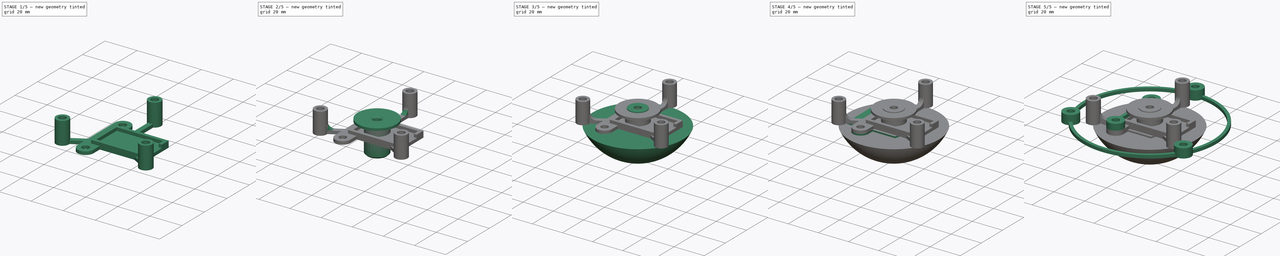
[diagram: build sequence overview — one tinted view per stage of 5, left to right]
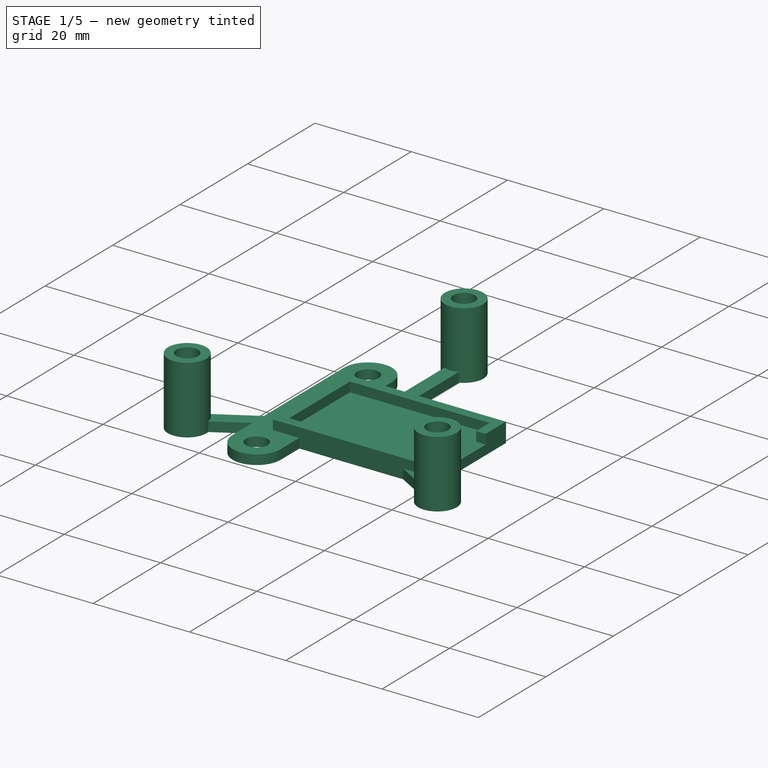
[diagram: stage 1 of 5 — iso view after this stage's code; geometry added in this stage tinted green]
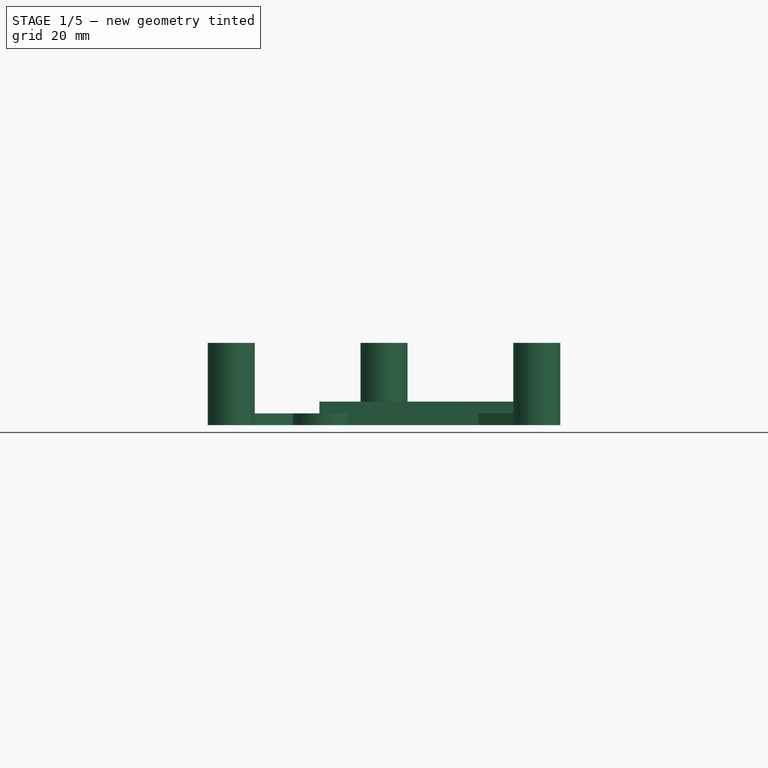
[diagram: stage 1 of 5 — front view after this stage's code; geometry added in this stage tinted green]
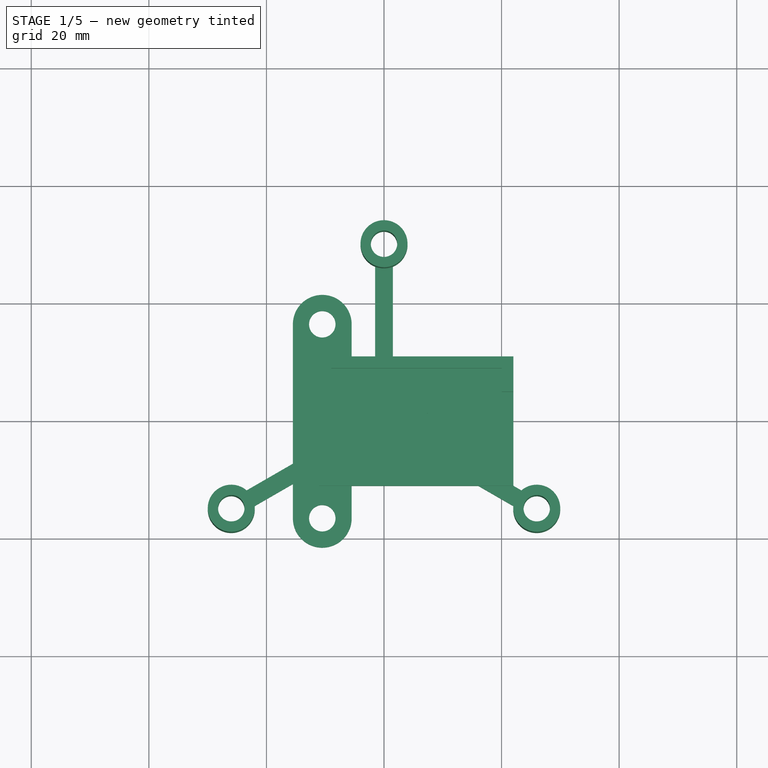
[diagram: stage 1 of 5 — top view after this stage's code; geometry added in this stage tinted green]
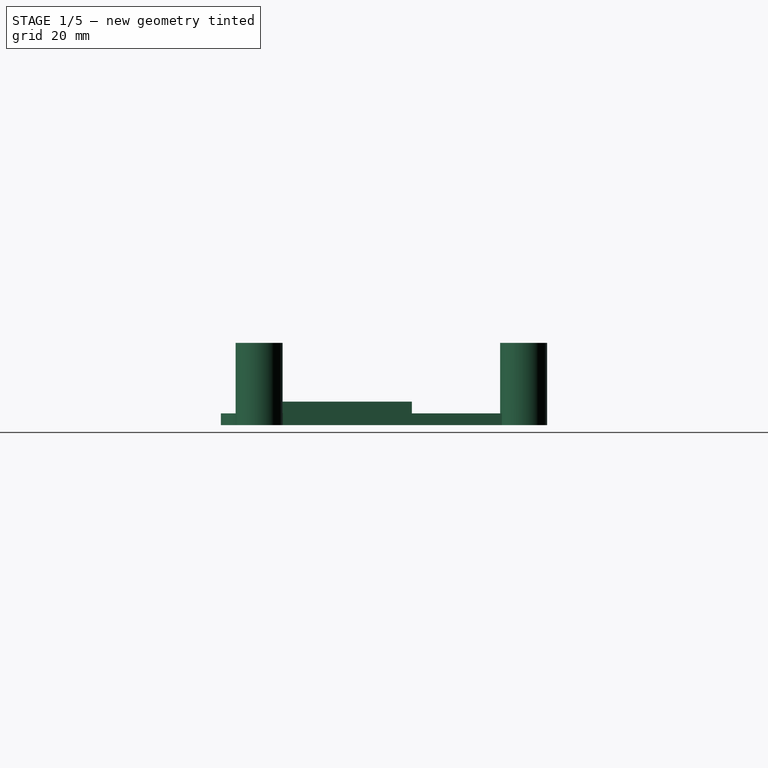
[diagram: stage 1 of 5 — right view after this stage's code; geometry added in this stage tinted green]
FCSTD DOCUMENT  (FreeCAD 0.21R33668 +26 (Git))
Label: presbicitofono
License: All rights reserved
LicenseURL: http://en.wikipedia.org/wiki/All_rights_reserved
objects: Sketcher::SketchObject×17, PartDesign::Pad×11, PartDesign::Body×9, PartDesign::Pocket×4, PartDesign::Chamfer×3, PartDesign::SubShapeBinder×2, PartDesign::Revolution×2, PartDesign::Fillet×1
note: 70 computed .brp shape members not serialized (recipe doc carries the construction recipe); baked Part::Feature solids carry a one-line shape summary decoded from their .brp

FEATURE [PartDesign::Body] Body002  label="fermo"
  Group = -> [Binder,Sketch005,Pad004,Sketch006,Pocket001]
  Origin = -> Origin002
  Tip = -> Pocket001
FEATURE [Sketcher::SketchObject] Sketch007
  FullyConstrained = true
  MapMode = 5
  Support = -> [XY_Plane003]
  sketch-geometry (22):
    g0: LineSegment StartX=0 StartY=30 StartZ=0 EndX=-25.9808 EndY=-15 EndZ=0
    g1: LineSegment StartX=-25.9808 StartY=-15 StartZ=0 EndX=25.9808 EndY=-15 EndZ=0
    g2: LineSegment StartX=25.9808 StartY=-15 StartZ=0 EndX=0 EndY=30 EndZ=0
    g3: Circle CenterX=0 CenterY=0 CenterZ=0 NormalX=0 NormalY=0 NormalZ=1 AngleXU=0 Radius=30
    g4: Circle CenterX=0 CenterY=30 CenterZ=0 NormalX=0 NormalY=0 NormalZ=1 AngleXU=0 Radius=2.25
    g5: Circle CenterX=-25.9808 CenterY=-15 CenterZ=0 NormalX=0 NormalY=0 NormalZ=1 AngleXU=0 Radius=2.25
    g6: Circle CenterX=25.9808 CenterY=-15 CenterZ=0 NormalX=0 NormalY=0 NormalZ=1 AngleXU=0 Radius=2.25
    g7: Circle CenterX=0 CenterY=0 CenterZ=0 NormalX=0 NormalY=0 NormalZ=1 AngleXU=0 Radius=7.5
    g8: ArcOfCircle CenterX=0 CenterY=0 CenterZ=0 NormalX=0 NormalY=0 NormalZ=1 AngleXU=0 Radius=10.5 StartAngle=1.71414 EndAngle=3.52184
    g9: ArcOfCircle CenterX=-25.9808 CenterY=-15 CenterZ=0 NormalX=0 NormalY=0 NormalZ=1 AngleXU=0 Radius=4 StartAngle=0.907996 EndAngle=6.42239
    g10: ArcOfCircle CenterX=25.9808 CenterY=-15 CenterZ=0 NormalX=0 NormalY=0 NormalZ=1 AngleXU=0 Radius=4 StartAngle=3.00239 EndAngle=8.51678
    g11: ArcOfCircle CenterX=0 CenterY=30 CenterZ=0 NormalX=0 NormalY=0 NormalZ=1 AngleXU=0 Radius=4 StartAngle=5.09679 EndAngle=10.6112
    g12: LineSegment StartX=-1.5 StartY=26.2919 StartZ=0 EndX=-1.5 EndY=10.3923 EndZ=0
    g13: LineSegment StartX=1.5 StartY=26.2919 StartZ=0 EndX=1.5 EndY=10.3923 EndZ=0
    g14: LineSegment StartX=-23.5195 StartY=-11.8469 StartZ=0 EndX=-9.75 EndY=-3.89711 EndZ=0
    g15: LineSegment StartX=-22.0195 StartY=-14.445 StartZ=0 EndX=-8.25 EndY=-6.49519 EndZ=0
    g16: LineSegment StartX=22.0195 StartY=-14.445 StartZ=0 EndX=8.25 EndY=-6.49519 EndZ=0
    g17: LineSegment StartX=23.5195 StartY=-11.8469 StartZ=0 EndX=9.75 EndY=-3.89711 EndZ=0
    g18: LineSegment StartX=-25.9808 StartY=-15 StartZ=0 EndX=0 EndY=0 EndZ=0
    g19: LineSegment StartX=0 StartY=0 StartZ=0 EndX=25.9808 EndY=-15 EndZ=0
    g20: ArcOfCircle CenterX=0 CenterY=0 CenterZ=0 NormalX=0 NormalY=0 NormalZ=1 AngleXU=0 Radius=10.5 StartAngle=3.80854 EndAngle=5.61624
    g21: ArcOfCircle CenterX=0 CenterY=0 CenterZ=0 NormalX=0 NormalY=0 NormalZ=1 AngleXU=0 Radius=10.5 StartAngle=5.90293 EndAngle=7.71063
  constraints (61):
    c: Coincident(g0,g1)
    c: Coincident(g1,g2)
    c: Coincident(g2,g0)
    c: Equal(g0,g1)
    c: Equal(g0,g2)
    c: PointOnObject(g0,g3)
    c: PointOnObject(g1,g3)
    c: PointOnObject(g2,g3)
    c: Coincident(g3,g-1)
    c: PointOnObject(g2,g-2)
    c: Diameter(g3) = 60
    c: Coincident(g4,g0)
    c: Coincident(g5,g0)
    c: Coincident(g6,g1)
    c: Equal(g6,g5)
    c: Equal(g5,g4)
    c: Diameter(g4) = 4.5
    c: Coincident(g7,g3)
    c: Coincident(g8,g7)
    c: Coincident(g9,g5)
    c: Coincident(g10,g6)
    c: Coincident(g11,g4)
    c: Equal(g11,g9)
    c: Equal(g9,g10)
    c: Diameter(g11) = 8
    c: Diameter(g7) = 15
    c: Diameter(g8) = 21
    c: Vertical(g12)
    c: Vertical(g13)
    c: PointOnObject(g15,g8)
    c: PointOnObject(g16,g8)
    c: Coincident(g18,g5)
    c: Coincident(g18,g7)
    c: Coincident(g19,g7)
    c: Coincident(g19,g6)
    c: Parallel(g14,g15)
    c: Parallel(g15,g18)
    c: Parallel(g16,g19)
    c: Parallel(g19,g17)
    c: Symmetric(g14,g15,g18)
    c: Distance(g14,g15) = 3
    c: Symmetric(g16,g17,g19)
    c: Distance(g16,g17) = 3
    c: Distance(g12,g13) = 3
    c: Horizontal(g12,g13)
    c: Coincident(g11,g12)
    c: Coincident(g11,g13)
    c: Coincident(g21,g13)
    c: Coincident(g8,g12)
    c: Equal(g8,g20)
    c: Coincident(g8,g14)
    c: Coincident(g8,g20)
    c: PointOnObject(g20,g15)
    c: Equal(g20,g21)
    c: PointOnObject(g21,g17)
    c: Coincident(g20,g21)
    c: PointOnObject(g20,g16)
    c: Coincident(g9,g15)
    c: PointOnObject(g9,g14)
    c: Coincident(g10,g17)
    c: Coincident(g10,g16)
FEATURE [PartDesign::Pad] Pad005
  Direction = (0,0,1)
  Length = 2
  Length2 = 10
  Profile = -> Sketch007
  ReferenceAxis = -> Sketch007 [N_Axis]
  Type = 0
FEATURE [Sketcher::SketchObject] Sketch009
  ExternalGeometry = -> [Pad005]
  FullyConstrained = true
  MapMode = 5
  Placement = pos=(0,0,2) rot=(0,0,1;0rad)
  sketch-geometry (6):
    g0: Circle CenterX=0 CenterY=30 CenterZ=0 NormalX=0 NormalY=0 NormalZ=1 AngleXU=0 Radius=2.25
    g1: Circle CenterX=0 CenterY=30 CenterZ=0 NormalX=0 NormalY=0 NormalZ=1 AngleXU=0 Radius=4
    g2: Circle CenterX=-25.9808 CenterY=-15 CenterZ=0 NormalX=0 NormalY=0 NormalZ=1 AngleXU=0 Radius=2.25
    g3: Circle CenterX=-25.9808 CenterY=-15 CenterZ=0 NormalX=0 NormalY=0 NormalZ=1 AngleXU=0 Radius=4
    g4: Circle CenterX=25.9808 CenterY=-15 CenterZ=0 NormalX=0 NormalY=0 NormalZ=1 AngleXU=0 Radius=2.25
    g5: Circle CenterX=25.9808 CenterY=-15 CenterZ=0 NormalX=0 NormalY=0 NormalZ=1 AngleXU=0 Radius=4
  constraints (12):
    c: Coincident(g1,g0)
    c: Coincident(g3,g2)
    c: Coincident(g5,g4)
    c: Equal(g2,g4)
    c: Equal(g4,g0)
    c: Equal(g0,g-3)
    c: Equal(g5,g3)
    c: Equal(g3,g1)
    c: Equal(g1,g-4)
    c: Coincident(g-4,g0)
    c: Coincident(g4,g-6)
    c: Coincident(g2,g-5)
FEATURE [PartDesign::Pad] Pad007
  BaseFeature = -> Pad005
  Direction = (0,0,1)
  Length = 12
  Length2 = 10
  Profile = -> Sketch009
  ReferenceAxis = -> Sketch009 [N_Axis]
  Refine = true
  Type = 0
FEATURE [PartDesign::Body] Body003  label="spessore sup"
  Group = -> [Sketch007,Pad005,Sketch009,Pad007,Fillet]
  Origin = -> Origin003
  Tip = -> Fillet
FEATURE [Sketcher::SketchObject] Sketch017
  FullyConstrained = true
  MapMode = 5
  Support = -> [XY_Plane008]
  sketch-geometry (10):
    g0: LineSegment StartX=-5.5 StartY=11 StartZ=0 EndX=22 EndY=11 EndZ=0
    g1: LineSegment StartX=22 StartY=11 StartZ=0 EndX=22 EndY=-11 EndZ=0
    g2: LineSegment StartX=22 StartY=-11 StartZ=0 EndX=-5.5 EndY=-11 EndZ=0
    g3: LineSegment StartX=-5.5 StartY=-11 StartZ=0 EndX=-5.5 EndY=-16.5 EndZ=0
    g4: ArcOfCircle CenterX=-10.5 CenterY=-16.5 CenterZ=0 NormalX=0 NormalY=0 NormalZ=1 AngleXU=0 Radius=5 StartAngle=3.14159 EndAngle=6.28319
    g5: LineSegment StartX=-15.5 StartY=-16.5 StartZ=0 EndX=-15.5 EndY=16.5 EndZ=0
    g6: ArcOfCircle CenterX=-10.5 CenterY=16.5 CenterZ=0 NormalX=0 NormalY=0 NormalZ=1 AngleXU=0 Radius=5 StartAngle=0 EndAngle=3.14159
    g7: LineSegment StartX=-5.5 StartY=16.5 StartZ=0 EndX=-5.5 EndY=11 EndZ=0
    g8: Circle CenterX=-10.5 CenterY=16.5 CenterZ=0 NormalX=0 NormalY=0 NormalZ=1 AngleXU=0 Radius=2.25
    g9: Circle CenterX=-10.5 CenterY=-16.5 CenterZ=0 NormalX=0 NormalY=0 NormalZ=1 AngleXU=0 Radius=2.25
  constraints (26):
    c: Horizontal(g0)
    c: Coincident(g0,g1)
    c: Coincident(g1,g2)
    c: Horizontal(g2)
    c: Coincident(g2,g3)
    c: Vertical(g3)
    c: Tangent(g3,g4) = 1.5708
    c: Coincident(g4,g5)
    c: Vertical(g5)
    c: Tangent(g5,g6) = 1.5708
    c: Tangent(g6,g7) = 1.5708
    c: Coincident(g7,g0)
    c: Symmetric(g0,g1,g-1)
    c: Equal(g4,g6)
    c: Equal(g7,g3)
    c: Coincident(g8,g6)
    c: Coincident(g9,g4)
    c: Equal(g9,g8)
    c: Diameter(g8) = 4.5
    c: DistanceX(g0) = 22
    c: Vertical(g7)
    c: DistanceY(g1,g1) = 22
    c: DistanceY(g6) = 16.5
    c: DistanceX(g6) = -10.5
    c: Diameter(g6) = 10
    c: Equal(g2,g0)
FEATURE [PartDesign::Pad] Pad010
  Direction = (0,0,1)
  Length = 2
  Length2 = 10
  Profile = -> Sketch017
  ReferenceAxis = -> Sketch017 [N_Axis]
  Type = 0
FEATURE [Sketcher::SketchObject] Sketch018
  ExternalGeometry = -> [Pad010]
  FullyConstrained = true
  MapMode = 5
  Placement = pos=(0,0,2) rot=(0,0,1;0rad)
  Support = -> [Pad010]
  sketch-geometry (12):
    g0: LineSegment StartX=22 StartY=11 StartZ=0 EndX=22 EndY=5 EndZ=0
    g1: LineSegment StartX=22 StartY=5 StartZ=0 EndX=20 EndY=5 EndZ=0
    g2: LineSegment StartX=20 StartY=5 StartZ=0 EndX=20 EndY=9 EndZ=0
    g3: LineSegment StartX=20 StartY=9 StartZ=0 EndX=-9 EndY=9 EndZ=0
    g4: LineSegment StartX=-9 StartY=9 StartZ=0 EndX=-9 EndY=-9 EndZ=0
    g5: LineSegment StartX=-9 StartY=-9 StartZ=0 EndX=20 EndY=-9 EndZ=0
    g6: LineSegment StartX=20 StartY=-9 StartZ=0 EndX=20 EndY=-5 EndZ=0
    g7: LineSegment StartX=20 StartY=-5 StartZ=0 EndX=22 EndY=-5 EndZ=0
    g8: LineSegment StartX=22 StartY=-5 StartZ=0 EndX=22 EndY=-11 EndZ=0
    g9: LineSegment StartX=22 StartY=-11 StartZ=0 EndX=-11 EndY=-11 EndZ=0
    g10: LineSegment StartX=-11 StartY=-11 StartZ=0 EndX=-11 EndY=11 EndZ=0
    g11: LineSegment StartX=-11 StartY=11 StartZ=0 EndX=22 EndY=11 EndZ=0
  constraints (32):
    c: Coincident(g-3,g0)
    c: PointOnObject(g0,g-3)
    c: Coincident(g0,g1)
    c: Coincident(g1,g2)
    c: Vertical(g2)
    c: Coincident(g2,g3)
    c: Horizontal(g3)
    c: Coincident(g3,g4)
    c: Coincident(g4,g5)
    c: Horizontal(g5)
    c: Coincident(g5,g6)
    c: Coincident(g6,g7)
    c: Coincident(g7,g8)
    c: Coincident(g8,g-3)
    c: Coincident(g8,g9)
    c: Horizontal(g9)
    c: Coincident(g9,g10)
    c: Vertical(g10)
    c: Coincident(g10,g11)
    c: Coincident(g11,g0)
    c: Horizontal(g11)
    c: Vertical(g6)
    c: Horizontal(g7)
    c: Horizontal(g1)
    c: Equal(g1,g7)
    c: Symmetric(g0,g7,g-1)
    c: DistanceX(g1,g1) = 2
    c: DistanceX(g10,g3) = 2
    c: DistanceY(g2,g0) = 2
    c: Symmetric(g4,g3,g-1)
    c: DistanceY(g7,g0) = 10
    c: DistanceX(g3,g3) = 29
FEATURE [PartDesign::Pad] Pad011
  BaseFeature = -> Pad010
  Direction = (0,0,1)
  Length = 2
  Length2 = 10
  Profile = -> Sketch018
  ReferenceAxis = -> Sketch018 [N_Axis]
  Type = 0
FEATURE [PartDesign::Body] Body008  label="supportoTPA4056"
  Group = -> [Sketch017,Pad010,Sketch018,Pad011]
  Origin = -> Origin008
  Tip = -> Pad011
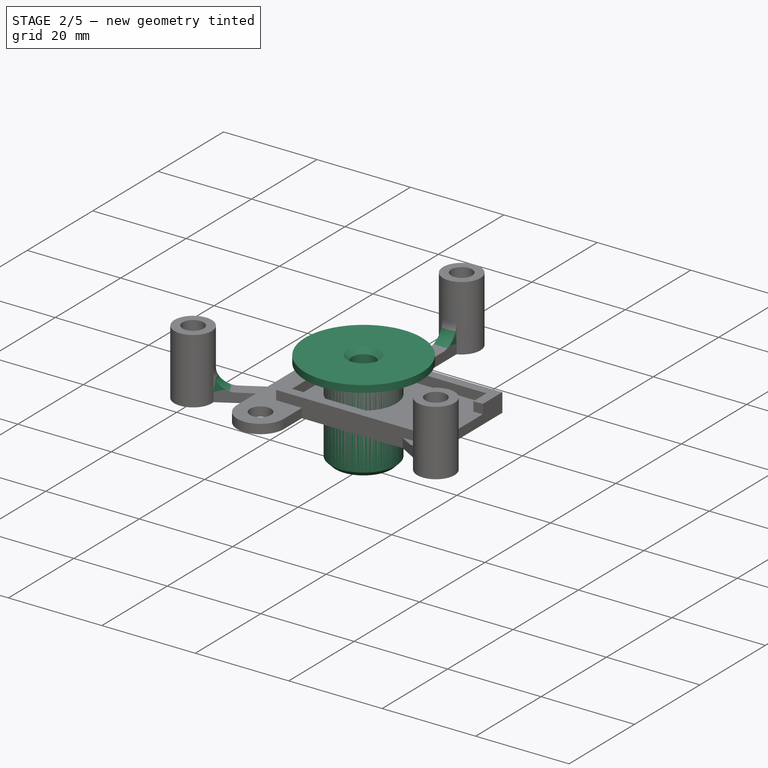
[diagram: stage 2 of 5 — iso view after this stage's code; geometry added in this stage tinted green]
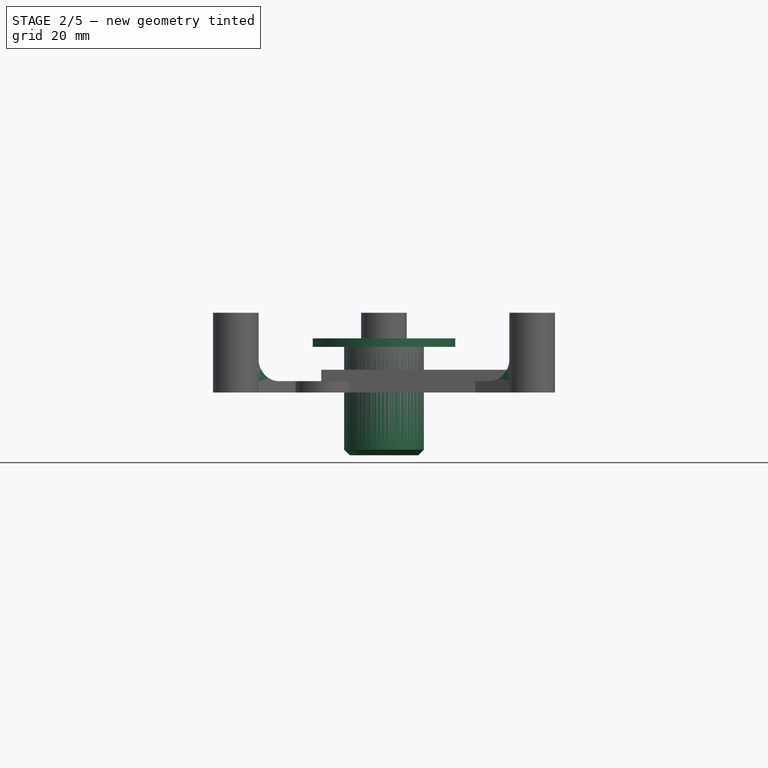
[diagram: stage 2 of 5 — front view after this stage's code; geometry added in this stage tinted green]
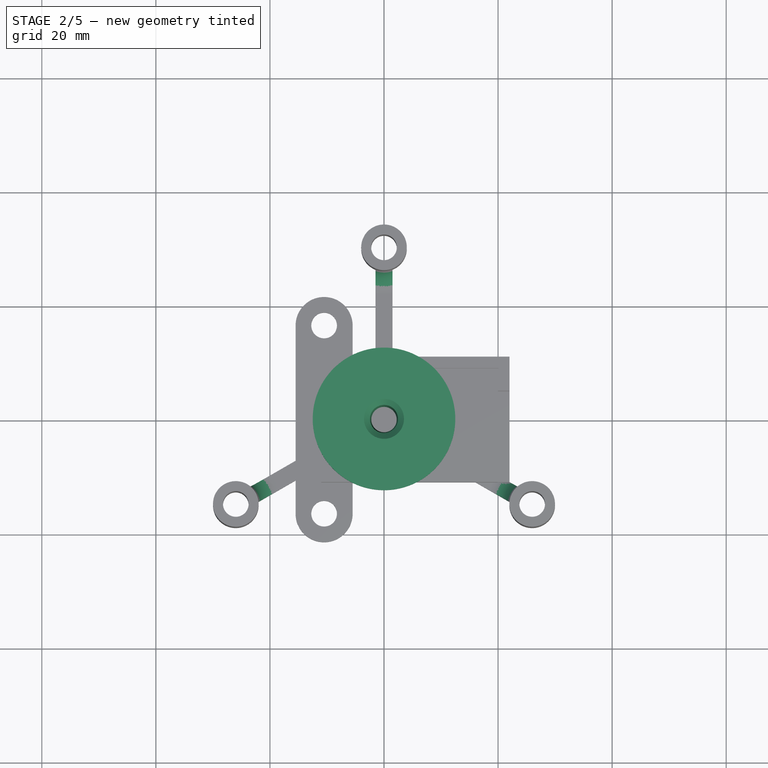
[diagram: stage 2 of 5 — top view after this stage's code; geometry added in this stage tinted green]
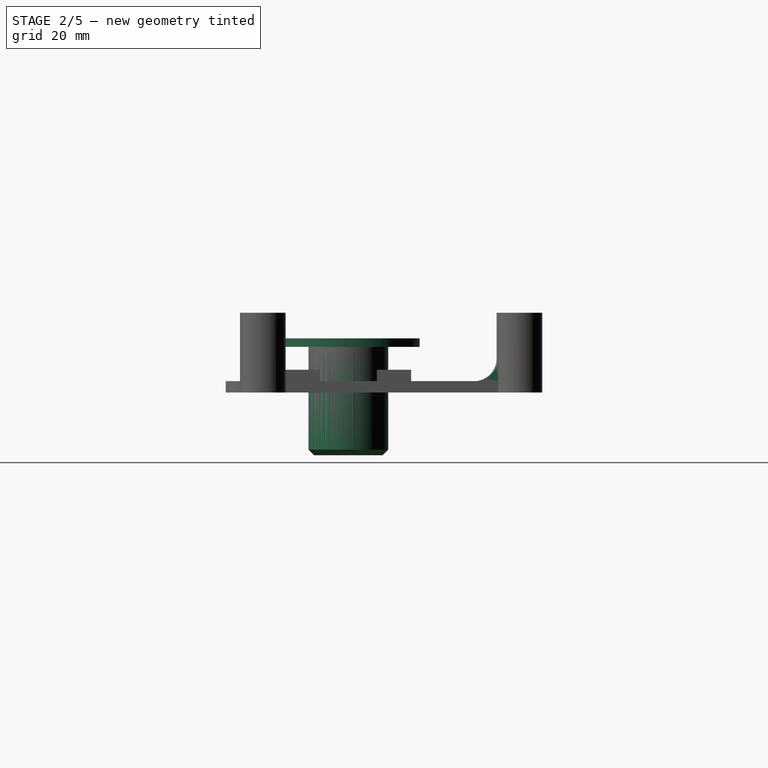
[diagram: stage 2 of 5 — right view after this stage's code; geometry added in this stage tinted green]
FEATURE [Sketcher::SketchObject] Sketch010
  FullyConstrained = true
  MapMode = 5
  Placement = pos=(0,0,0) rot=(1,0,0;1.5708rad)
  Support = -> [XZ_Plane004]
  sketch-geometry (8):
    g0: LineSegment StartX=-2.5 StartY=9.5 StartZ=0 EndX=-12.5 EndY=9.5 EndZ=0
    g1: LineSegment StartX=-12.5 StartY=9.5 StartZ=0 EndX=-12.5 EndY=8 EndZ=0
    g2: LineSegment StartX=-12.5 StartY=8 StartZ=0 EndX=-7 EndY=8 EndZ=0
    g3: LineSegment StartX=-7 StartY=8 StartZ=0 EndX=-7 EndY=-11 EndZ=0
    g4: LineSegment StartX=-7 StartY=-11 StartZ=0 EndX=0 EndY=-11 EndZ=0
    g5: LineSegment StartX=0 StartY=-11 StartZ=0 EndX=0 EndY=-4 EndZ=0
    g6: LineSegment StartX=0 StartY=-4 StartZ=0 EndX=-2 EndY=-4 EndZ=0
    g7: LineSegment StartX=-2 StartY=-4 StartZ=0 EndX=-2.5 EndY=9.5 EndZ=0
  constraints (24):
    c: Horizontal(g0)
    c: Coincident(g0,g1)
    c: Coincident(g1,g2)
    c: Horizontal(g2)
    c: Coincident(g2,g3)
    c: Vertical(g3)
    c: Coincident(g3,g4)
    c: PointOnObject(g4,g-2)
    c: Coincident(g4,g5)
    c: PointOnObject(g5,g-2)
    c: Coincident(g5,g6)
    c: Coincident(g6,g7)
    c: Coincident(g0,g7)
    c: Vertical(g1)
    c: DistanceY(g1,g1) = 1.5
    c: DistanceX(g0,g0) = 10
    c: Horizontal(g6)
    c: Horizontal(g4)
    c: DistanceX(g2) = -7
    c: DistanceX(g0) = -2.5
    c: DistanceY(g1) = 8
    c: DistanceY(g5) = -4
    c: DistanceY(g5,g5) = 7
    c: DistanceX(g6,g6) = 2
FEATURE [PartDesign::Revolution] Revolution
  Angle = 360
  Axis = (0,-2e-16,1)
  Base = (0,0,0)
  Placement = pos=(0,0,0) rot=(1,0,0;1.5708rad)
  Profile = -> Sketch010
  ReferenceAxis = -> Sketch010 [V_Axis]
FEATURE [PartDesign::Chamfer] Chamfer
  Angle = 45
  Base = -> Revolution [Edge1]
  BaseFeature = -> Revolution
  ChamferType = 0
  FlipDirection = false
  Placement = pos=(0,0,0) rot=(1,0,0;1.5708rad)
  Size = 1
  Size2 = 1
  SupportTransform = false
  UseAllEdges = false
FEATURE [PartDesign::Body] Body006  label="piedino"
  Group = -> [Sketch013,Sketch014,Pad009,Pocket002]
  Origin = -> Origin006
  Tip = -> Pocket002
FEATURE [PartDesign::Chamfer] Chamfer001
  Angle = 45
  Base = -> Chamfer [Edge10]
  BaseFeature = -> Chamfer
  ChamferType = 0
  FlipDirection = false
  Placement = pos=(0,0,0) rot=(1,0,0;1.5708rad)
  Size = 1
  Size2 = 1
  SupportTransform = false
  UseAllEdges = false
FEATURE [PartDesign::Body] Body004  label="pulsante"
  Group = -> [Sketch010,Revolution,Chamfer,Chamfer001,Sketch016,Pocket003]
  Origin = -> Origin004
  Tip = -> Pocket003
FEATURE [PartDesign::Fillet] Fillet
  Base = -> Pad007 [Edge29,Edge33,Edge36]
  BaseFeature = -> Pad007
  Radius = 4
  SupportTransform = false
  UseAllEdges = false
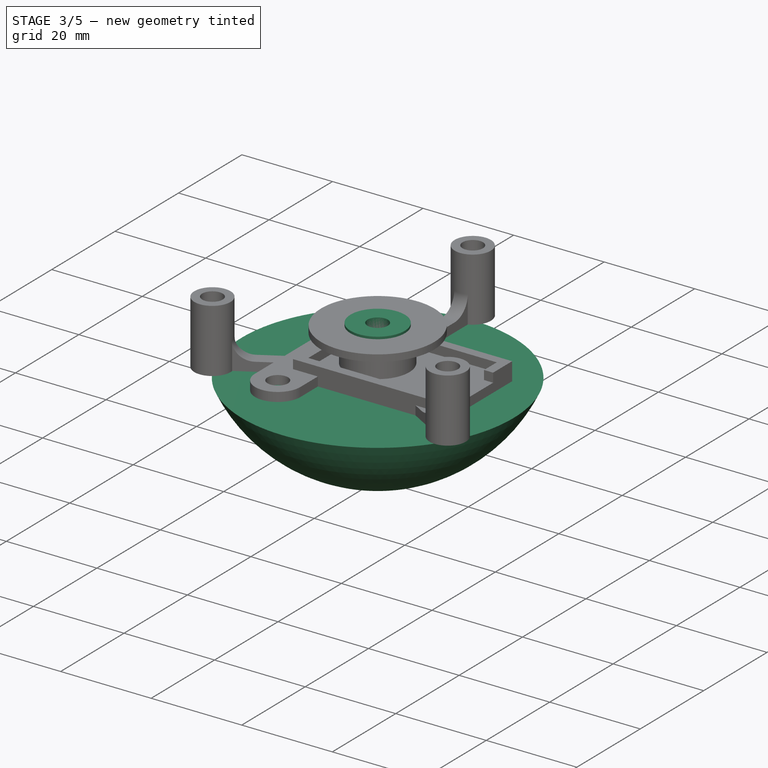
[diagram: stage 3 of 5 — iso view after this stage's code; geometry added in this stage tinted green]
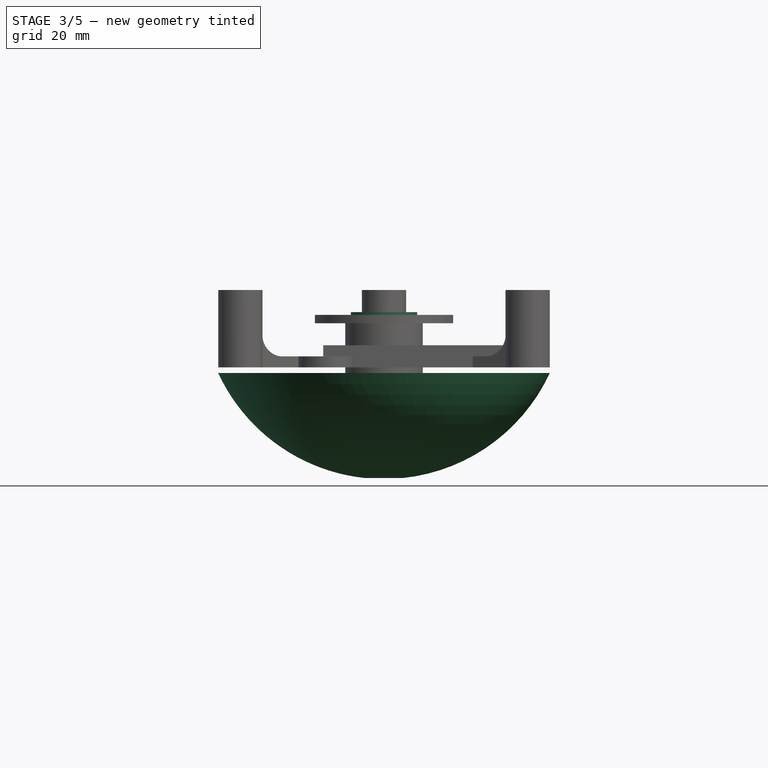
[diagram: stage 3 of 5 — front view after this stage's code; geometry added in this stage tinted green]
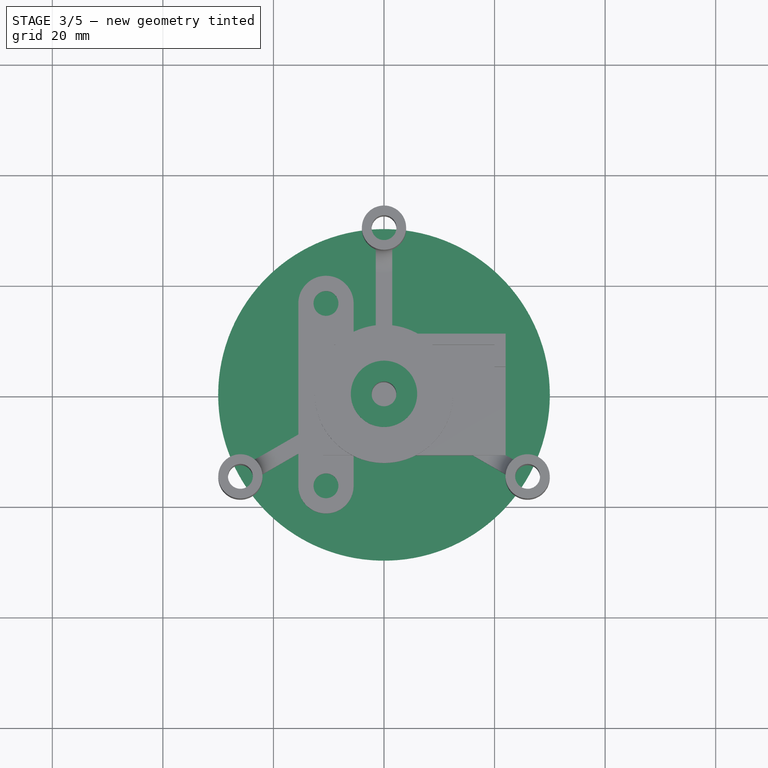
[diagram: stage 3 of 5 — top view after this stage's code; geometry added in this stage tinted green]
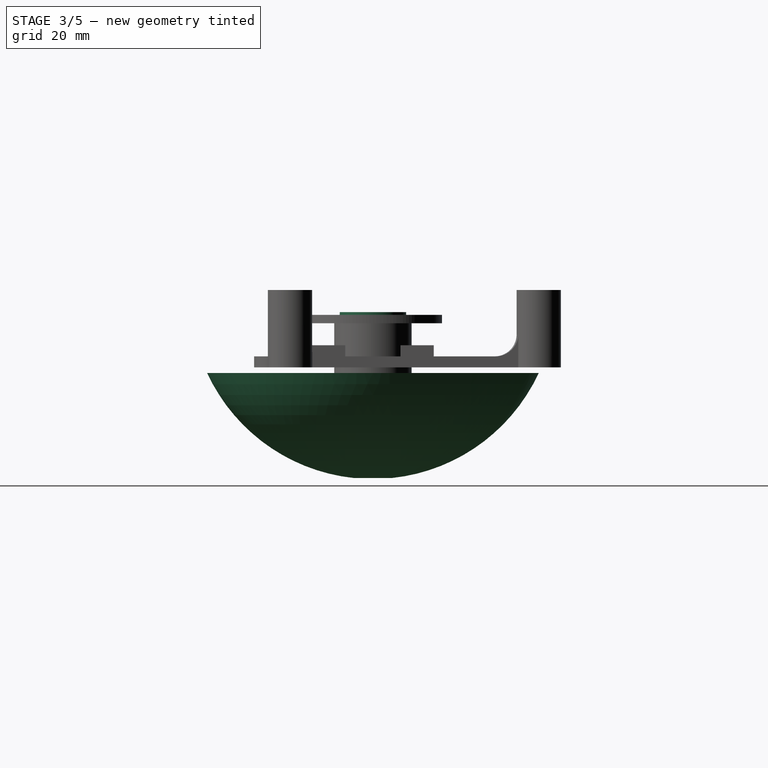
[diagram: stage 3 of 5 — right view after this stage's code; geometry added in this stage tinted green]
FEATURE [PartDesign::Body] Body005  label="spessore portamodulo"
  Group = -> [Binder001,Sketch011,Pad008]
  Origin = -> Origin005
  Tip = -> Pad008
FEATURE [Sketcher::SketchObject] Sketch014
  FullyConstrained = true
  MapMode = 5
  Support = -> [XY_Plane006]
  sketch-geometry (2):
    g0: Circle CenterX=0 CenterY=0 CenterZ=0 NormalX=0 NormalY=0 NormalZ=1 AngleXU=0 Radius=6
    g1: Circle CenterX=0 CenterY=0 CenterZ=0 NormalX=0 NormalY=0 NormalZ=1 AngleXU=0 Radius=2.25
  constraints (4):
    c: Coincident(g0,g-1)
    c: Coincident(g1,g0)
    c: Diameter(g1) = 4.5
    c: Diameter(g0) = 12
FEATURE [PartDesign::Pad] Pad009
  Direction = (0,0,1)
  Length = 10
  Length2 = 10
  Profile = -> Sketch014
  ReferenceAxis = -> Sketch014 [N_Axis]
  Type = 0
FEATURE [Sketcher::SketchObject] Sketch013
  FullyConstrained = true
  MapMode = 5
  Placement = pos=(0,0,0) rot=(1,0,0;3.14159rad)
  Support = -> [Pad009]
  sketch-geometry (7):
    g0: LineSegment StartX=3.4641 StartY=-2 StartZ=0 EndX=3.4641 EndY=2 EndZ=0
    g1: LineSegment StartX=3.4641 StartY=2 StartZ=0 EndX=2.2e-15 EndY=4 EndZ=0
    g2: LineSegment StartX=2.2e-15 StartY=4 StartZ=0 EndX=-3.4641 EndY=2 EndZ=0
    g3: LineSegment StartX=-3.4641 StartY=2 StartZ=0 EndX=-3.4641 EndY=-2 EndZ=0
    g4: LineSegment StartX=-3.4641 StartY=-2 StartZ=0 EndX=1.3e-15 EndY=-4 EndZ=0
    g5: LineSegment StartX=1.3e-15 StartY=-4 StartZ=0 EndX=3.4641 EndY=-2 EndZ=0
    g6: Circle CenterX=0 CenterY=0 CenterZ=0 NormalX=0 NormalY=0 NormalZ=1 AngleXU=0 Radius=4
  constraints (16):
    c: Coincident(g0,g1)
    c: Coincident(g1,g2)
    c: Coincident(g2,g3)
    c: Coincident(g3,g4)
    c: Coincident(g4,g5)
    c: Coincident(g5,g0)
    c: Equal(g0, g1-g5) x5
    c: PointOnObject(g0,g6)
    c: PointOnObject(g1,g6)
    c: PointOnObject(g2,g6)
    c: PointOnObject(g3,g6)
    c: PointOnObject(g4,g6)
    c: PointOnObject(g5,g6)
    c: Coincident(g6,g-1)
    c: Vertical(g0)
    c: Diameter(g6) = 8
FEATURE [PartDesign::Pocket] Pocket002
  BaseFeature = -> Pad009
  Direction = (0,0,1)
  Length = 7
  Length2 = 5
  Profile = -> Sketch013
  ReferenceAxis = -> Sketch013 [N_Axis]
  Type = 0
FEATURE [Sketcher::SketchObject] Sketch015
  FullyConstrained = true
  MapMode = 5
  Placement = pos=(0,0,0) rot=(1,0,0;1.5708rad)
  Support = -> [XZ_Plane007]
  sketch-geometry (7):
    g0: LineSegment StartX=-7.5 StartY=-1 StartZ=0 EndX=-7.5 EndY=-11 EndZ=0
    g1: LineSegment StartX=-7.5 StartY=-11 StartZ=0 EndX=-1.5 EndY=-11 EndZ=0
    g2: ArcOfCircle CenterX=0 CenterY=12.8618 CenterZ=0 NormalX=0 NormalY=0 NormalZ=1 AngleXU=0 Radius=33.0477 StartAngle=3.57443 EndAngle=4.60628
    g3: LineSegment StartX=-30 StartY=-1 StartZ=0 EndX=-7.5 EndY=-1 EndZ=0
    g4: LineSegment StartX=-1.5 StartY=-14 StartZ=0 EndX=-3.5 EndY=-14 EndZ=0
    g5: LineSegment StartX=-3.5 StartY=-14 StartZ=0 EndX=-3.5 EndY=-20 EndZ=0
    g6: LineSegment StartX=-1.5 StartY=-14 StartZ=0 EndX=-1.5 EndY=-11 EndZ=0
  constraints (22):
    c: Vertical(g0)
    c: Coincident(g0,g1)
    c: Horizontal(g1)
    c: Coincident(g2,g3)
    c: Horizontal(g3)
    c: DistanceX(g2) = -30
    c: DistanceY(g0,g0) = 10
    c: Coincident(g0,g3)
    c: Horizontal(g4)
    c: Coincident(g4,g5)
    c: Vertical(g5)
    c: Vertical(g6)
    c: Coincident(g4,g6)
    c: Coincident(g2,g5)
    c: DistanceX(g4) = -1.5
    c: DistanceX(g2) = -3.5
    c: DistanceY(g6,g6) = 3
    c: PointOnObject(g2,g-2)
    c: Coincident(g1,g6)
    c: DistanceY(g0) = -1
    c: DistanceX(g0) = -7.5
    c: DistanceY(g5,g5) = 6
FEATURE [PartDesign::Revolution] Revolution001
  Angle = 360
  Axis = (0,-2e-16,1)
  Base = (0,0,0)
  Placement = pos=(0,0,0) rot=(1,0,0;1.5708rad)
  Profile = -> Sketch015
  ReferenceAxis = -> Sketch015 [V_Axis]
FEATURE [PartDesign::Chamfer] Chamfer002
  Angle = 45
  Base = -> Revolution001 [Edge2]
  BaseFeature = -> Revolution001
  ChamferType = 0
  FlipDirection = false
  Placement = pos=(0,0,0) rot=(1,0,0;1.5708rad)
  Size = 1
  Size2 = 1
  SupportTransform = false
  UseAllEdges = false
FEATURE [PartDesign::Body] Body007  label="cappello"
  Group = -> [Sketch015,Revolution001,Chamfer002]
  Origin = -> Origin007
  Tip = -> Chamfer002
FEATURE [Sketcher::SketchObject] Sketch016
  FullyConstrained = true
  MapMode = 5
  Placement = pos=(0,-2.4e-15,-11) rot=(1,0,0;3.14159rad)
  Support = -> [Chamfer001]
  sketch-geometry (1):
    g0: Circle CenterX=0 CenterY=0 CenterZ=0 NormalX=0 NormalY=0 NormalZ=1 AngleXU=0 Radius=1.25
  constraints (2):
    c: Coincident(g0,g-1)
    c: Diameter(g0) = 2.5
FEATURE [PartDesign::Pocket] Pocket003
  BaseFeature = -> Chamfer001
  Direction = (0,-2e-16,1)
  Length = 3.5
  Length2 = 5
  Placement = pos=(0,0,0) rot=(1,0,0;1.5708rad)
  Profile = -> Sketch016
  ReferenceAxis = -> Sketch016 [N_Axis]
  Type = 0
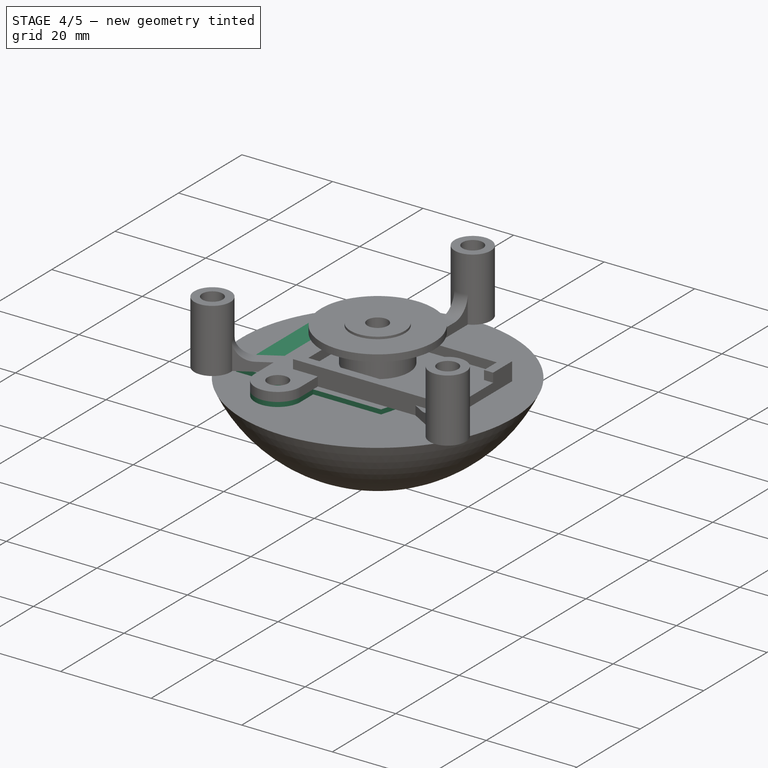
[diagram: stage 4 of 5 — iso view after this stage's code; geometry added in this stage tinted green]
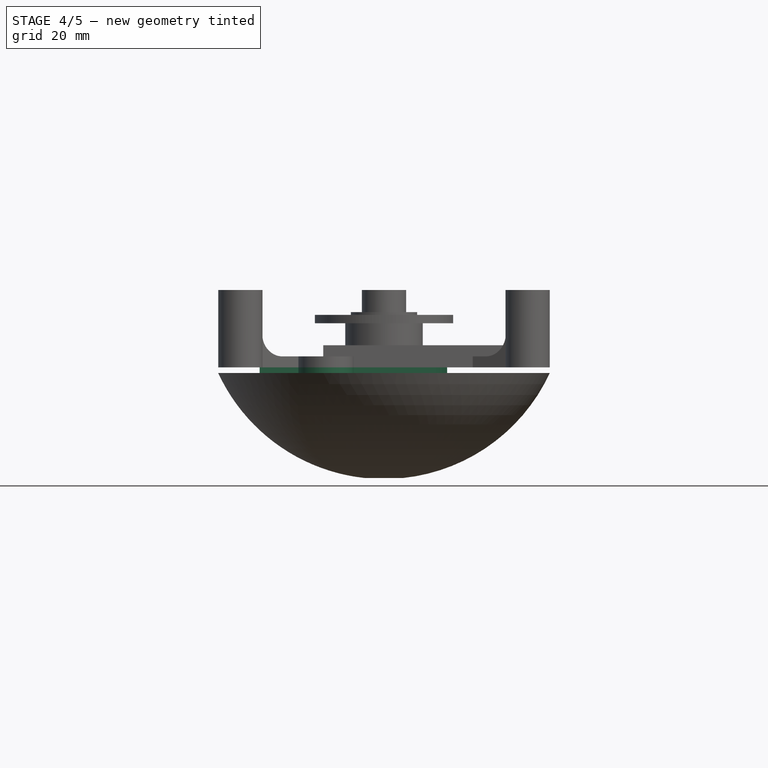
[diagram: stage 4 of 5 — front view after this stage's code; geometry added in this stage tinted green]
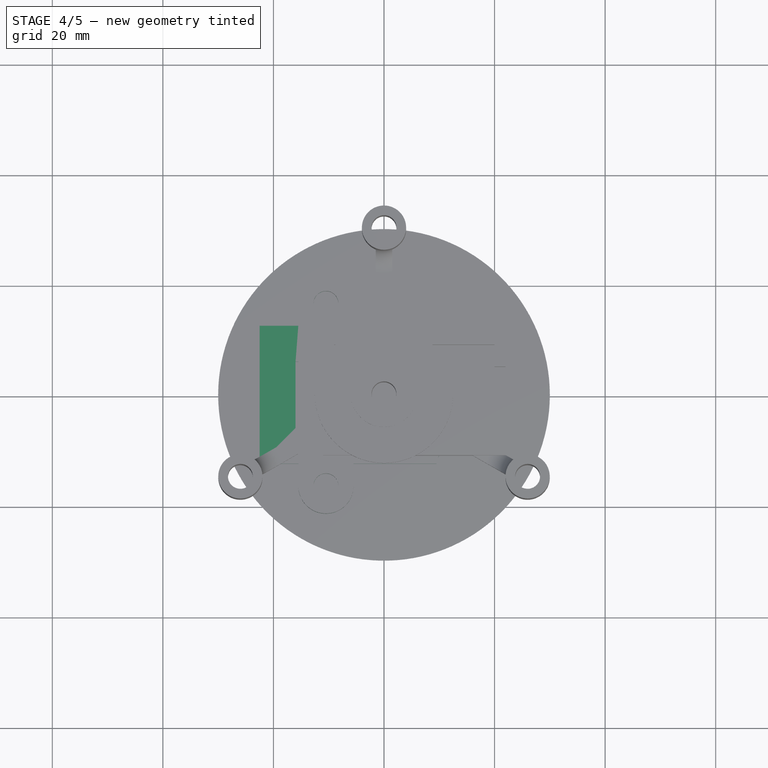
[diagram: stage 4 of 5 — top view after this stage's code; geometry added in this stage tinted green]
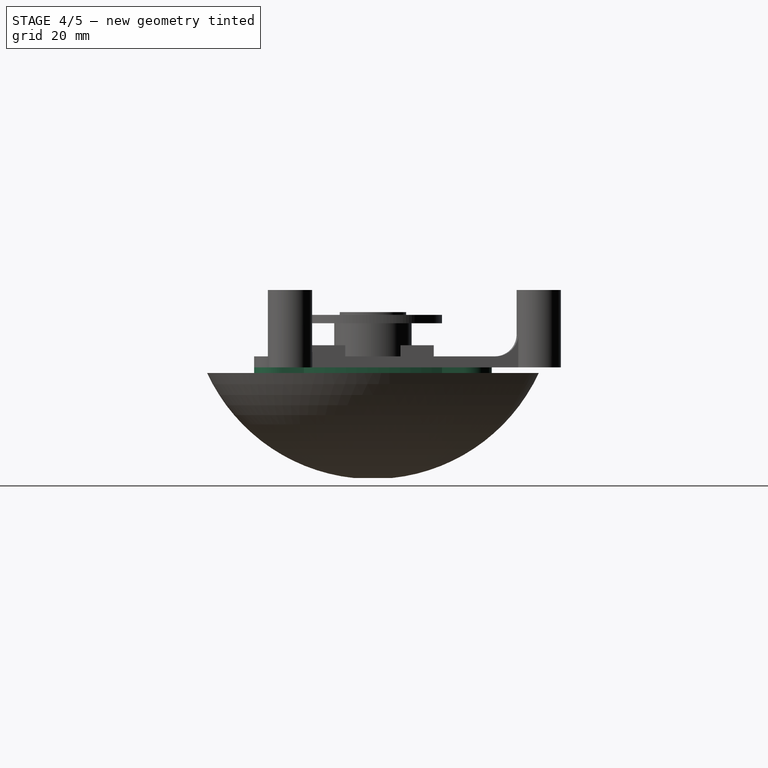
[diagram: stage 4 of 5 — right view after this stage's code; geometry added in this stage tinted green]
FEATURE [PartDesign::Body] Body  label="spessore inf"
  Group = -> [Sketch,Pad,Sketch001,Pad001]
  Origin = -> Origin
  Tip = -> Pad001
FEATURE [Sketcher::SketchObject] Sketch002
  FullyConstrained = true
  MapMode = 5
  Support = -> [XY_Plane001]
  sketch-geometry (14):
    g0: LineSegment StartX=22.5 StartY=12.5 StartZ=0 EndX=22.5 EndY=-12.5 EndZ=0
    g1: LineSegment StartX=22.5 StartY=-12.5 StartZ=0 EndX=-5.5 EndY=-12.5 EndZ=0
    g2: ArcOfCircle CenterX=-10.5 CenterY=16.5 CenterZ=0 NormalX=0 NormalY=0 NormalZ=1 AngleXU=0 Radius=5 StartAngle=0 EndAngle=3.14159
    g3: LineSegment StartX=-5.5 StartY=16.5 StartZ=0 EndX=-5.5 EndY=12.5 EndZ=0
    g4: Circle CenterX=-10.5 CenterY=16.5 CenterZ=0 NormalX=0 NormalY=0 NormalZ=1 AngleXU=0 Radius=2.25
    g5: LineSegment StartX=-5.5 StartY=-12.5 StartZ=0 EndX=-5.5 EndY=-16.5 EndZ=0
    g6: ArcOfCircle CenterX=-10.5 CenterY=-16.5 CenterZ=0 NormalX=0 NormalY=0 NormalZ=1 AngleXU=0 Radius=5 StartAngle=3.14159 EndAngle=6.28319
    g7: Circle CenterX=-10.5 CenterY=-16.5 CenterZ=0 NormalX=0 NormalY=0 NormalZ=1 AngleXU=0 Radius=2.25
    g8: LineSegment StartX=-5.5 StartY=12.5 StartZ=0 EndX=22.5 EndY=12.5 EndZ=0
    g9: LineSegment StartX=-15.5 StartY=16.5 StartZ=0 EndX=-15.5 EndY=12.5 EndZ=0
    g10: LineSegment StartX=-15.5 StartY=12.5 StartZ=0 EndX=-22.5 EndY=12.5 EndZ=0
    g11: LineSegment StartX=-22.5 StartY=12.5 StartZ=0 EndX=-22.5 EndY=-12.5 EndZ=0
    g12: LineSegment StartX=-22.5 StartY=-12.5 StartZ=0 EndX=-15.5 EndY=-12.5 EndZ=0
    g13: LineSegment StartX=-15.5 StartY=-12.5 StartZ=0 EndX=-15.5 EndY=-16.5 EndZ=0
  constraints (36):
    c: Coincident(g0,g1)
    c: Horizontal(g1)
    c: DistanceY(g0,g0) = 25
    c: Tangent(g2,g3) = 1.5708
    c: Vertical(g3)
    c: Coincident(g8,g0)
    c: Coincident(g4,g2)
    c: Diameter(g4) = 4.5
    c: Vertical(g5)
    c: Tangent(g5,g6) = 1.5708
    c: Equal(g6,g2)
    c: Coincident(g7,g6)
    c: Equal(g7,g4)
    c: Equal(g5,g3)
    c: Symmetric(g0,g0,g-1)
    c: DistanceY(g3,g3) = 4
    c: Radius(g2) = 5
    c: Coincident(g1,g5)
    c: Horizontal(g8)
    c: Coincident(g3,g8)
    c: Tangent(g2,g9) = -1.5708
    c: Coincident(g9,g10)
    c: Horizontal(g10)
    c: Coincident(g10,g11)
    c: Vertical(g11)
    c: Coincident(g11,g12)
    c: Horizontal(g12)
    c: Coincident(g12,g13)
    c: Vertical(g13)
    c: Vertical(g9)
    c: DistanceX(g11,g0) = 45
    c: Symmetric(g0,g10,g-1)
    c: Vertical(g6,g2)
    c: DistanceX(g11,g6) = 12
    c: Horizontal(g12,g1)
    c: Tangent(g13,g6) = -1.5708
FEATURE [PartDesign::Pad] Pad002
  Direction = (0,0,1)
  Length = 2
  Length2 = 10
  Profile = -> Sketch002
  ReferenceAxis = -> Sketch002 [N_Axis]
  Refine = true
  Type = 0
FEATURE [Sketcher::SketchObject] Sketch003
  ExternalGeometry = -> [Pad002]
  FullyConstrained = true
  MapMode = 5
  Placement = pos=(0,0,2) rot=(0,0,1;0rad)
  Support = -> [Pad002]
  sketch-geometry (18):
    g0: LineSegment StartX=22.5 StartY=-12.5 StartZ=0 EndX=15.5 EndY=-12.5 EndZ=0
    g1: LineSegment StartX=15.5 StartY=-12.5 StartZ=0 EndX=15.5 EndY=-10.5 EndZ=0
    g2: LineSegment StartX=15.5 StartY=-10.5 StartZ=0 EndX=22.5 EndY=-10.5 EndZ=0
    g3: LineSegment StartX=20.5 StartY=10.5 StartZ=0 EndX=15.5 EndY=10.5 EndZ=0
    g4: LineSegment StartX=15.5 StartY=10.5 StartZ=0 EndX=15.5 EndY=12.5 EndZ=0
    g5: LineSegment StartX=15.5 StartY=12.5 StartZ=0 EndX=22.5 EndY=12.5 EndZ=0
    g6: LineSegment StartX=-15.5 StartY=12.5 StartZ=0 EndX=-22.5 EndY=12.5 EndZ=0
    g7: LineSegment StartX=-22.5 StartY=12.5 StartZ=0 EndX=-22.5 EndY=-12.5 EndZ=0
    g8: LineSegment StartX=-22.5 StartY=-12.5 StartZ=0 EndX=-15.5 EndY=-12.5 EndZ=0
    g9: LineSegment StartX=-15.5 StartY=-12.5 StartZ=0 EndX=-15.5 EndY=-10.5 EndZ=0
    g10: LineSegment StartX=-15.5 StartY=-10.5 StartZ=0 EndX=-20.5 EndY=-10.5 EndZ=0
    g11: LineSegment StartX=-20.5 StartY=-10.5 StartZ=0 EndX=-20.5 EndY=10.5 EndZ=0
    g12: LineSegment StartX=-20.5 StartY=10.5 StartZ=0 EndX=-15.5 EndY=10.5 EndZ=0
    g13: LineSegment StartX=-15.5 StartY=10.5 StartZ=0 EndX=-15.5 EndY=12.5 EndZ=0
    g14: LineSegment StartX=22.5 StartY=-12.5 StartZ=0 EndX=22.5 EndY=-10.5 EndZ=0
    g15: LineSegment StartX=20.5 StartY=10.5 StartZ=0 EndX=20.5 EndY=-0.5 EndZ=0
    g16: LineSegment StartX=20.5 StartY=-0.5 StartZ=0 EndX=22.5 EndY=-0.5 EndZ=0
    g17: LineSegment StartX=22.5 StartY=-0.5 StartZ=0 EndX=22.5 EndY=12.5 EndZ=0
  constraints (53):
    c: Vertical(g11)
    c: Vertical(g7)
    c: Vertical(g13)
    c: Vertical(g9)
    c: Vertical(g1)
    c: Vertical(g4)
    c: Horizontal(g6)
    c: Horizontal(g12)
    c: Horizontal(g10)
    c: Horizontal(g8)
    c: Horizontal(g0)
    c: Horizontal(g2)
    c: Horizontal(g3)
    c: Horizontal(g5)
    c: Equal(g13,g4)
    c: Equal(g4,g1)
    c: Equal(g1,g9)
    c: DistanceY(g13,g13) = 2
    c: DistanceX(g7,g10) = 2
    c: DistanceX(g6,g5) = 45
    c: PointOnObject(g6,g-4)
    c: Horizontal(g6,g4)
    c: Horizontal(g8,g0)
    c: Coincident(g10,g11)
    c: Coincident(g11,g12)
    c: Coincident(g10,g9)
    c: Coincident(g8,g9)
    c: Coincident(g1,g2)
    c: Coincident(g0,g1)
    c: Coincident(g3,g4)
    c: Coincident(g4,g5)
    c: Coincident(g12,g13)
    c: Coincident(g6,g13)
    c: Vertical(g3,g1)
    c: Vertical(g9,g12)
    c: Coincident(g7,g8)
    c: Coincident(g7,g-3)
    c: Coincident(g7,g6)
    c: DistanceX(g6,g6) = 7
    c: Equal(g5,g6)
    c: Coincident(g14,g0)
    c: Coincident(g14,g2)
    c: Vertical(g14)
    c: Vertical(g2,g5)
    c: Coincident(g3,g15)
    c: Vertical(g15)
    c: Coincident(g15,g16)
    c: Coincident(g16,g17)
    c: Coincident(g17,g5)
    c: Vertical(g17)
    c: Horizontal(g16)
    c: DistanceX(g16,g16) = 2
    c: DistanceY(g2,g16) = 10
FEATURE [PartDesign::Pad] Pad003
  BaseFeature = -> Pad002
  Direction = (0,0,1)
  Length = 2
  Length2 = 10
  Profile = -> Sketch003
  ReferenceAxis = -> Sketch003 [N_Axis]
  Refine = true
  Type = 0
FEATURE [Sketcher::SketchObject] Sketch004
  FullyConstrained = true
  MapMode = 5
  Placement = pos=(0,0,2) rot=(0,0,1;0rad)
  Support = -> [Pad003]
  sketch-geometry (4):
    g0: LineSegment StartX=-16 StartY=6 StartZ=0 EndX=16 EndY=6 EndZ=0
    g1: LineSegment StartX=16 StartY=6 StartZ=0 EndX=16 EndY=-6 EndZ=0
    g2: LineSegment StartX=16 StartY=-6 StartZ=0 EndX=-16 EndY=-6 EndZ=0
    g3: LineSegment StartX=-16 StartY=-6 StartZ=0 EndX=-16 EndY=6 EndZ=0
  constraints (11):
    c: Coincident(g0,g1)
    c: Coincident(g1,g2)
    c: Coincident(g2,g3)
    c: Coincident(g3,g0)
    c: Horizontal(g0)
    c: Horizontal(g2)
    c: Vertical(g1)
    c: Vertical(g3)
    c: Symmetric(g0,g2,g-1)
    c: DistanceY(g3,g3) = 12
    c: DistanceX(g2,g2) = 32
FEATURE [PartDesign::Pocket] Pocket
  BaseFeature = -> Pad003
  Direction = (0,0,-1)
  Length = 5
  Length2 = 5
  Profile = -> Sketch004
  ReferenceAxis = -> Sketch004 [N_Axis]
  Type = 2
FEATURE [PartDesign::SubShapeBinder] Binder001
  BindCopyOnChange = 0
  BindMode = 0
  ClaimChildren = false
  Context = -> Body005 [Binder001.]
  Fuse = false
  MakeFace = true
  OffsetFill = false
  OffsetIntersection = false
  OffsetJoinType = 0
  OffsetOpenResult = false
  PartialLoad = false
  Relative = true
  Support = -> [Body001[Pocket.Face4]]
  _Version = 2
FEATURE [Sketcher::SketchObject] Sketch011
  ExternalGeometry = -> [Binder001]
  FullyConstrained = true
  MapMode = 5
  Placement = pos=(0,0,0) rot=(1,0,0;3.14159rad)
  Support = -> [Binder001]
  sketch-geometry (18):
    g0: LineSegment StartX=-15.5 StartY=16.5 StartZ=0 EndX=-15.5 EndY=12.5 EndZ=0
    g1: LineSegment StartX=-15.5 StartY=12.5 StartZ=0 EndX=-22.5 EndY=12.5 EndZ=0
    g2: LineSegment StartX=-22.5 StartY=12.5 StartZ=0 EndX=-22.5 EndY=-12.5 EndZ=0
    g3: LineSegment StartX=-22.5 StartY=-12.5 StartZ=0 EndX=-15.5 EndY=-12.5 EndZ=0
    g4: LineSegment StartX=-15.5 StartY=-12.5 StartZ=0 EndX=-15.5 EndY=-16.5 EndZ=0
    g5: ArcOfCircle CenterX=-10.5 CenterY=-16.5 CenterZ=0 NormalX=0 NormalY=0 NormalZ=1 AngleXU=0 Radius=5 StartAngle=3.14159 EndAngle=6.28319
    g6: LineSegment StartX=9.5 StartY=12.5 StartZ=0 EndX=-5.5 EndY=12.5 EndZ=0
    g7: LineSegment StartX=-5.5 StartY=12.5 StartZ=0 EndX=-5.5 EndY=16.5 EndZ=0
    g8: LineSegment StartX=-5.5 StartY=-16.5 StartZ=0 EndX=-5.5 EndY=-12.5 EndZ=0
    g9: LineSegment StartX=-5.5 StartY=-12.5 StartZ=0 EndX=9.5 EndY=-12.5 EndZ=0
    g10: ArcOfCircle CenterX=-30 CenterY=0 CenterZ=0 NormalX=0 NormalY=0 NormalZ=1 AngleXU=0 Radius=41.4307 StartAngle=5.9767 EndAngle=6.58967
    g11: ArcOfCircle CenterX=-10.5 CenterY=16.5 CenterZ=0 NormalX=0 NormalY=0 NormalZ=1 AngleXU=0 Radius=5 StartAngle=0 EndAngle=3.14159
    g12: LineSegment StartX=-16 StartY=6 StartZ=0 EndX=-16 EndY=-6 EndZ=0
    g13: LineSegment StartX=-16 StartY=-6 StartZ=0 EndX=3.5 EndY=-6 EndZ=0
    g14: LineSegment StartX=3.5 StartY=6 StartZ=0 EndX=-16 EndY=6 EndZ=0
    g15: ArcOfCircle CenterX=-30 CenterY=0 CenterZ=0 NormalX=0 NormalY=0 NormalZ=1 AngleXU=0 Radius=34.0331 StartAngle=6.10596 EndAngle=6.46041
    g16: Circle CenterX=-10.5 CenterY=-16.5 CenterZ=0 NormalX=0 NormalY=0 NormalZ=1 AngleXU=0 Radius=2.25
    g17: Circle CenterX=-10.5 CenterY=16.5 CenterZ=0 NormalX=0 NormalY=0 NormalZ=1 AngleXU=0 Radius=2.25
  constraints (44):
    c: Tangent(g-4,g0) = -1.5708
    c: Coincident(g0,g1)
    c: Coincident(g1,g-3)
    c: Coincident(g1,g2)
    c: Coincident(g2,g-3)
    c: Coincident(g2,g3)
    c: Horizontal(g3)
    c: Coincident(g3,g4)
    c: Coincident(g4,g-5)
    c: Tangent(g4,g5) = -1.5708
    c: Coincident(g5,g-5)
    c: Horizontal(g6)
    c: Coincident(g6,g7)
    c: Coincident(g7,g-4)
    c: Vertical(g4)
    c: Vertical(g7)
    c: Horizontal(g1)
    c: Horizontal(g6,g0)
    c: Tangent(g5,g8) = -1.5708
    c: Coincident(g8,g9)
    c: Horizontal(g9)
    c: PointOnObject(g10,g-1)
    c: Coincident(g10,g6)
    c: Coincident(g10,g9)
    c: Horizontal(g8,g3)
    c: DistanceX(g9,g9) = 15
    c: DistanceX(g10) = -30
    c: Coincident(g11,g-4)
    c: Coincident(g0,g11)
    c: Horizontal(g11,g7)
    c: Coincident(g-6,g12)
    c: Coincident(g12,g-6)
    c: Coincident(g12,g13)
    c: Horizontal(g13)
    c: Coincident(g14,g12)
    c: Horizontal(g14)
    c: Coincident(g15,g10)
    c: Coincident(g15,g14)
    c: Coincident(g15,g13)
    c: DistanceX(g14,g6) = 6
    c: Coincident(g16,g5)
    c: Coincident(g17,g11)
    c: Equal(g-7,g17)
    c: Equal(g17,g16)
FEATURE [PartDesign::Pad] Pad008
  Direction = (0,0,-1)
  Length = 4
  Length2 = 10
  Profile = -> Sketch011
  ReferenceAxis = -> Sketch011 [N_Axis]
  Type = 0
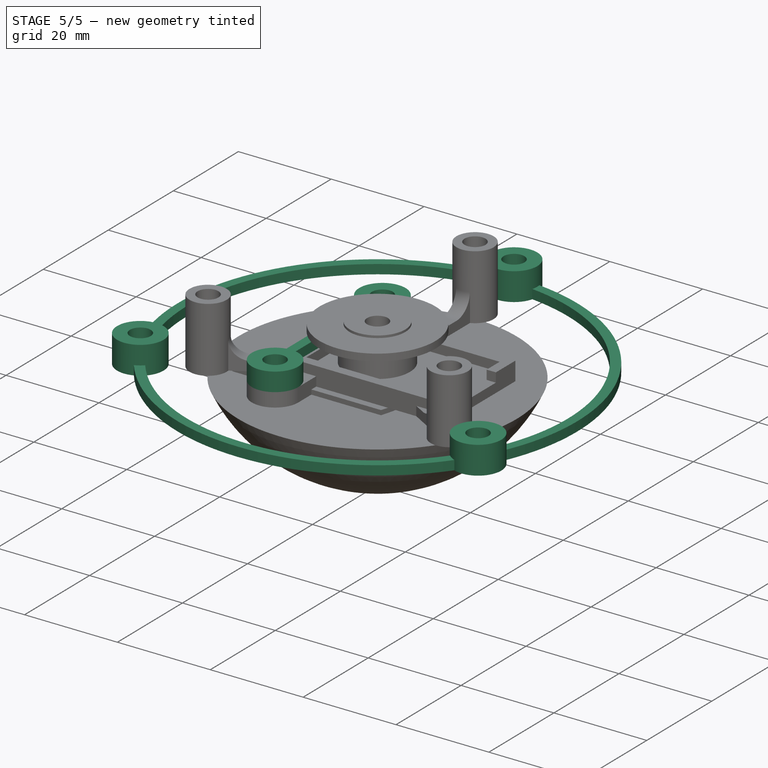
[diagram: stage 5 of 5 — iso view after this stage's code; geometry added in this stage tinted green]
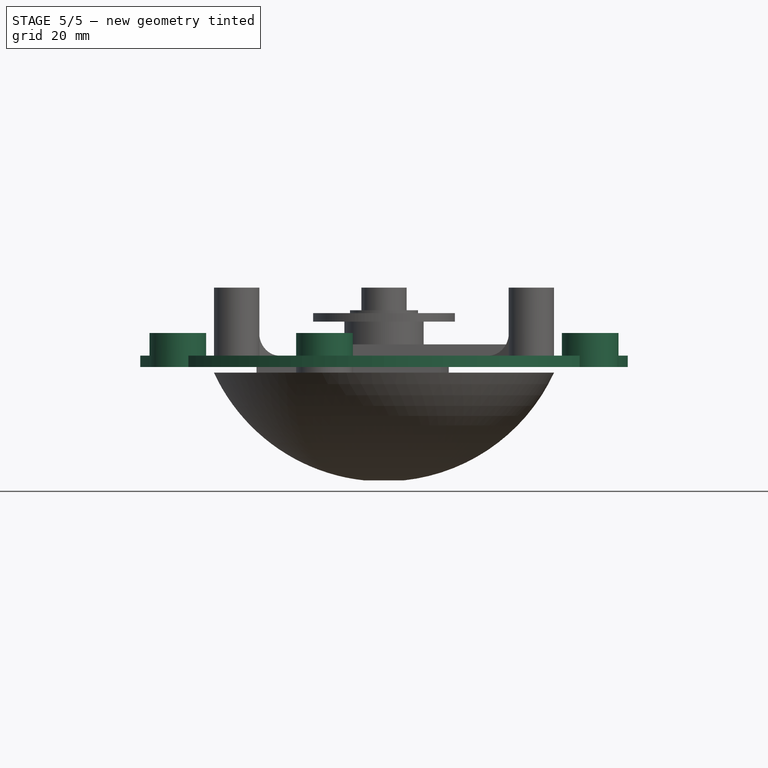
[diagram: stage 5 of 5 — front view after this stage's code; geometry added in this stage tinted green]
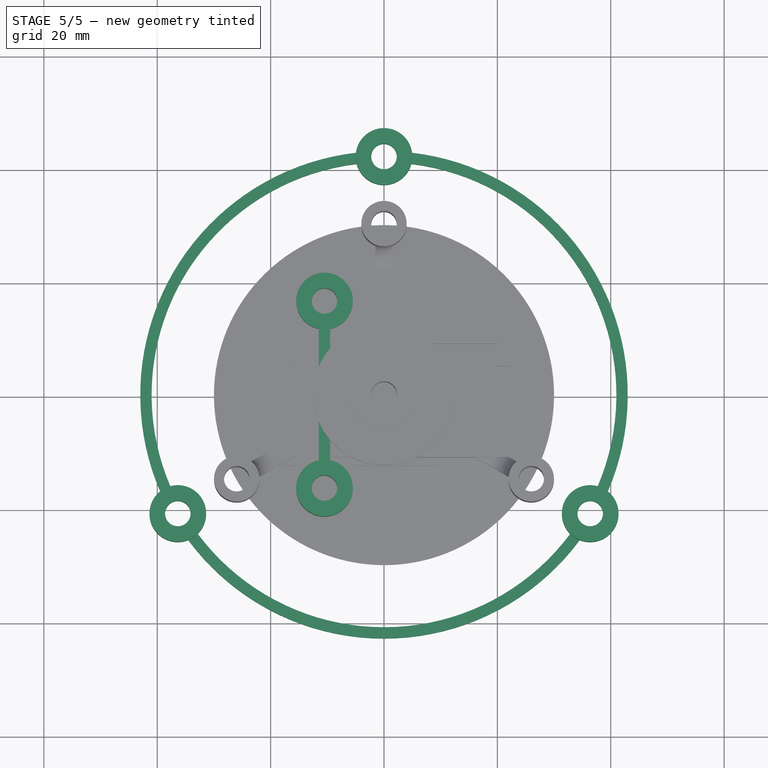
[diagram: stage 5 of 5 — top view after this stage's code; geometry added in this stage tinted green]
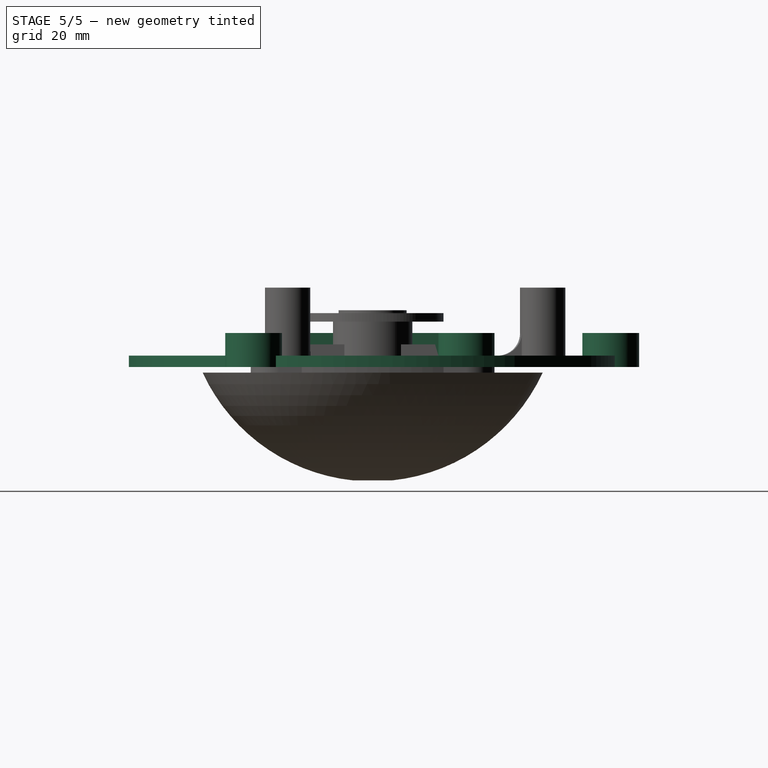
[diagram: stage 5 of 5 — right view after this stage's code; geometry added in this stage tinted green]
FEATURE [Sketcher::SketchObject] Sketch
  FullyConstrained = true
  MapMode = 5
  Support = -> [XY_Plane]
  expr: Constraints[18] = .Constraints.R + 2 mm
  expr: Constraints[50] = (.Constraints.R - 2 mm) / 2
  sketch-geometry (19):
    g0: LineSegment StartX=0 StartY=42 StartZ=0 EndX=-36.3731 EndY=-21 EndZ=0
    g1: LineSegment StartX=-36.3731 StartY=-21 StartZ=0 EndX=36.3731 EndY=-21 EndZ=0
    g2: LineSegment StartX=36.3731 StartY=-21 StartZ=0 EndX=0 EndY=42 EndZ=0
    g3: Circle CenterX=0 CenterY=0 CenterZ=0 NormalX=0 NormalY=0 NormalZ=1 AngleXU=0 Radius=42
    g4: Circle CenterX=0 CenterY=42 CenterZ=0 NormalX=0 NormalY=0 NormalZ=1 AngleXU=0 Radius=2.25
    g5: Circle CenterX=-36.3731 CenterY=-21 CenterZ=0 NormalX=0 NormalY=0 NormalZ=1 AngleXU=0 Radius=2.25
    g6: Circle CenterX=36.3731 CenterY=-21 CenterZ=0 NormalX=0 NormalY=0 NormalZ=1 AngleXU=0 Radius=2.25
    g7: ArcOfCircle CenterX=0 CenterY=0 CenterZ=0 NormalX=0 NormalY=0 NormalZ=1 AngleXU=0 Radius=43 StartAngle=3.78053 EndAngle=5.64424
    g8: ArcOfCircle CenterX=0 CenterY=42 CenterZ=0 NormalX=0 NormalY=0 NormalZ=1 AngleXU=0 Radius=5 StartAngle=3.40166 EndAngle=6.02312
    g9: ArcOfCircle CenterX=-36.3731 CenterY=-21 CenterZ=0 NormalX=0 NormalY=0 NormalZ=1 AngleXU=0 Radius=5 StartAngle=5.49605 EndAngle=8.11752
    g10: ArcOfCircle CenterX=0 CenterY=0 CenterZ=0 NormalX=0 NormalY=0 NormalZ=1 AngleXU=0 Radius=41 StartAngle=3.78332 EndAngle=5.64146
    g11: ArcOfCircle CenterX=0 CenterY=0 CenterZ=0 NormalX=0 NormalY=0 NormalZ=1 AngleXU=0 Radius=41 StartAngle=5.87771 EndAngle=7.73586
    g12: ArcOfCircle CenterX=0 CenterY=0 CenterZ=0 NormalX=0 NormalY=0 NormalZ=1 AngleXU=0 Radius=43 StartAngle=5.87493 EndAngle=7.73864
    g13: ArcOfCircle CenterX=36.3731 CenterY=-21 CenterZ=0 NormalX=0 NormalY=0 NormalZ=1 AngleXU=0 Radius=5 StartAngle=1.30726 EndAngle=3.92873
    g14: ArcOfCircle CenterX=0 CenterY=0 CenterZ=0 NormalX=0 NormalY=0 NormalZ=1 AngleXU=0 Radius=43 StartAngle=1.68614 EndAngle=3.54985
    g15: ArcOfCircle CenterX=0 CenterY=0 CenterZ=0 NormalX=0 NormalY=0 NormalZ=1 AngleXU=0 Radius=41 StartAngle=1.68892 EndAngle=3.54707
    g16: ArcOfCircle CenterX=0 CenterY=42 CenterZ=0 NormalX=0 NormalY=0 NormalZ=1 AngleXU=0 Radius=5 StartAngle=0.143348 EndAngle=2.99825
    g17: ArcOfCircle CenterX=36.3731 CenterY=-21 CenterZ=0 NormalX=0 NormalY=0 NormalZ=1 AngleXU=0 Radius=5 StartAngle=4.33214 EndAngle=7.18704
    g18: ArcOfCircle CenterX=-36.3731 CenterY=-21 CenterZ=0 NormalX=0 NormalY=0 NormalZ=1 AngleXU=0 Radius=5 StartAngle=2.23774 EndAngle=5.09264
  constraints (54):
    c: Coincident(g0,g1)
    c: Coincident(g1,g2)
    c: Coincident(g2,g0)
    c: Equal(g0,g1)
    c: Equal(g0,g2)
    c: PointOnObject(g0,g3)
    c: PointOnObject(g1,g3)
    c: PointOnObject(g2,g3)
    c: PointOnObject(g2,g-2)
    c: Coincident(g4,g0)
    c: Coincident(g5,g0)
    c: Coincident(g6,g1)
    c: Equal(g4,g5)
    c: Equal(g5,g6)
    c: Diameter(g4) = 4.5
    c: Diameter(g3) = 84  'R'
    c: Coincident(g3,g-1)
    c: Coincident(g7,g3)
    c: Diameter(g7) = 86
    c: Coincident(g8,g4)
    c: Diameter(g8) = 10
    c: Coincident(g9,g5)
    c: Equal(g9,g8)
    c: Coincident(g9,g15)
    c: Equal(g10,g11)
    c: Coincident(g10,g13)
    c: Coincident(g10,g11)
    c: Equal(g7,g12)
    c: Coincident(g7,g12)
    c: Coincident(g13,g11)
    c: PointOnObject(g8,g11)
    c: Equal(g12,g14)
    c: Coincident(g12,g14)
    c: PointOnObject(g14,g8)
    c: Equal(g11,g15)
    c: Coincident(g11,g15)
    c: PointOnObject(g15,g8)
    c: Coincident(g8,g11)
    c: Coincident(g16,g4)
    c: Coincident(g16,g14)
    c: Coincident(g16,g12)
    c: Coincident(g17,g6)
    c: Coincident(g17,g7)
    c: Coincident(g17,g12)
    c: Coincident(g9,g10)
    c: Coincident(g18,g5)
    c: Coincident(g18,g14)
    c: Coincident(g18,g7)
    c: Equal(g18,g9)
    c: Equal(g17,g13)
    c: Radius(g15) = 41
    c: Coincident(g10,g7)
    c: Coincident(g13,g6)
    c: Equal(g17,g16)
FEATURE [PartDesign::Pad] Pad
  Direction = (0,0,1)
  Length = 2
  Length2 = 10
  Profile = -> Sketch
  ReferenceAxis = -> Sketch [N_Axis]
  Type = 0
FEATURE [Sketcher::SketchObject] Sketch001
  ExternalGeometry = -> [Pad]
  FullyConstrained = true
  MapMode = 5
  Placement = pos=(0,0,2) rot=(0,0,1;0rad)
  Support = -> [Pad]
  sketch-geometry (6):
    g0: Circle CenterX=0 CenterY=42 CenterZ=0 NormalX=0 NormalY=0 NormalZ=1 AngleXU=0 Radius=2.25
    g1: Circle CenterX=0 CenterY=42 CenterZ=0 NormalX=0 NormalY=0 NormalZ=1 AngleXU=0 Radius=5
    g2: Circle CenterX=36.3731 CenterY=-21 CenterZ=0 NormalX=0 NormalY=0 NormalZ=1 AngleXU=0 Radius=2.25
    g3: Circle CenterX=36.3731 CenterY=-21 CenterZ=0 NormalX=0 NormalY=0 NormalZ=1 AngleXU=0 Radius=5
    g4: Circle CenterX=-36.3731 CenterY=-21 CenterZ=0 NormalX=0 NormalY=0 NormalZ=1 AngleXU=0 Radius=2.25
    g5: Circle CenterX=-36.3731 CenterY=-21 CenterZ=0 NormalX=0 NormalY=0 NormalZ=1 AngleXU=0 Radius=5
  constraints (12):
    c: Coincident(g0,g-3)
    c: Coincident(g1,g0)
    c: Coincident(g2,g-4)
    c: Coincident(g3,g2)
    c: Coincident(g4,g-5)
    c: Coincident(g5,g4)
    c: Equal(g4,g-5)
    c: Equal(g-5,g0)
    c: Equal(g0,g2)
    c: Equal(g3,g-6)
    c: Equal(g3,g1)
    c: Equal(g1,g5)
FEATURE [PartDesign::Pad] Pad001
  BaseFeature = -> Pad
  Direction = (0,0,1)
  Length = 4
  Length2 = 10
  Profile = -> Sketch001
  ReferenceAxis = -> Sketch001 [N_Axis]
  Refine = true
  Type = 0
FEATURE [PartDesign::Body] Body001  label="portamodulo"
  Group = -> [Sketch002,Pad002,Sketch003,Pad003,Sketch004,Pocket]
  Origin = -> Origin001
  Tip = -> Pocket
FEATURE [PartDesign::SubShapeBinder] Binder
  BindCopyOnChange = 0
  BindMode = 0
  ClaimChildren = false
  Context = -> Body002 [Binder.]
  Fuse = false
  MakeFace = true
  OffsetFill = false
  OffsetIntersection = false
  OffsetJoinType = 0
  OffsetOpenResult = false
  PartialLoad = false
  Relative = true
  Support = -> [Body001[Pocket.Face5]]
  _Version = 2
FEATURE [Sketcher::SketchObject] Sketch005
  AttachmentOffset = pos=(0,0,2) rot=(0,0,1;0rad)
  ExternalGeometry = -> [Binder]
  FullyConstrained = true
  MapMode = 5
  Placement = pos=(0,0,2) rot=(0,0,1;0rad)
  Support = -> [XY_Plane002]
  sketch-geometry (6):
    g0: Circle CenterX=-10.5 CenterY=16.5 CenterZ=0 NormalX=0 NormalY=0 NormalZ=1 AngleXU=0 Radius=2.25
    g1: Circle CenterX=-10.5 CenterY=-16.5 CenterZ=0 NormalX=0 NormalY=0 NormalZ=1 AngleXU=0 Radius=2.25
    g2: ArcOfCircle CenterX=-10.5 CenterY=-16.5 CenterZ=0 NormalX=0 NormalY=0 NormalZ=1 AngleXU=0 Radius=5 StartAngle=1.77215 EndAngle=7.65262
    g3: ArcOfCircle CenterX=-10.5 CenterY=16.5 CenterZ=0 NormalX=0 NormalY=0 NormalZ=1 AngleXU=0 Radius=5 StartAngle=4.91375 EndAngle=10.7942
    g4: LineSegment StartX=-11.5 StartY=11.601 StartZ=0 EndX=-11.5 EndY=-11.601 EndZ=0
    g5: LineSegment StartX=-9.5 StartY=11.601 StartZ=0 EndX=-9.5 EndY=-11.601 EndZ=0
  constraints (16):
    c: Coincident(g0,g-6)
    c: Coincident(g1,g-5)
    c: Coincident(g2,g1)
    c: Coincident(g3,g0)
    c: Coincident(g4,g3)
    c: Coincident(g4,g2)
    c: Vertical(g4)
    c: Coincident(g5,g3)
    c: Coincident(g5,g2)
    c: Vertical(g5)
    c: Equal(g3,g-6)
    c: DistanceX(g3,g3) = 2
    c: Horizontal(g3,g3)
    c: Equal(g2,g3)
    c: Equal(g0,g1)
    c: Equal(g1,g-3)
FEATURE [PartDesign::Pad] Pad004
  Direction = (0,0,1)
  Length = 4
  Length2 = 10
  Profile = -> Sketch005
  ReferenceAxis = -> Sketch005 [N_Axis]
  Type = 0
FEATURE [Sketcher::SketchObject] Sketch006
  ExternalGeometry = -> [Pad004]
  FullyConstrained = true
  MapMode = 5
  Placement = pos=(0,0,2) rot=(1,0,0;3.14159rad)
  Support = -> [Pad004]
  sketch-geometry (4):
    g0: LineSegment StartX=-11.5 StartY=11 StartZ=0 EndX=-9.5 EndY=11 EndZ=0
    g1: LineSegment StartX=-9.5 StartY=11 StartZ=0 EndX=-9.5 EndY=-11 EndZ=0
    g2: LineSegment StartX=-9.5 StartY=-11 StartZ=0 EndX=-11.5 EndY=-11 EndZ=0
    g3: LineSegment StartX=-11.5 StartY=-11 StartZ=0 EndX=-11.5 EndY=11 EndZ=0
  constraints (11):
    c: Coincident(g0,g1)
    c: Coincident(g1,g2)
    c: Coincident(g2,g3)
    c: Coincident(g3,g0)
    c: Horizontal(g0)
    c: Horizontal(g2)
    c: Vertical(g3)
    c: Symmetric(g0,g1,g-1)
    c: PointOnObject(g0,g-4)
    c: PointOnObject(g0,g-3)
    c: DistanceY(g1,g1) = 22
FEATURE [PartDesign::Pocket] Pocket001
  BaseFeature = -> Pad004
  Direction = (0,0,1)
  Length = 2
  Length2 = 5
  Profile = -> Sketch006
  ReferenceAxis = -> Sketch006 [N_Axis]
  Type = 0
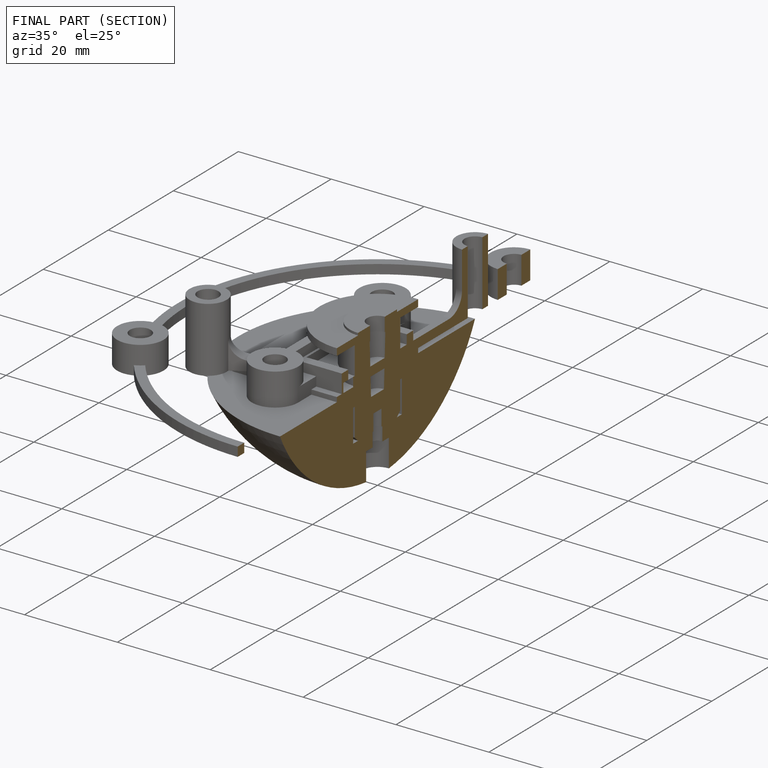
[diagram: finished part — half-section view (interior)]
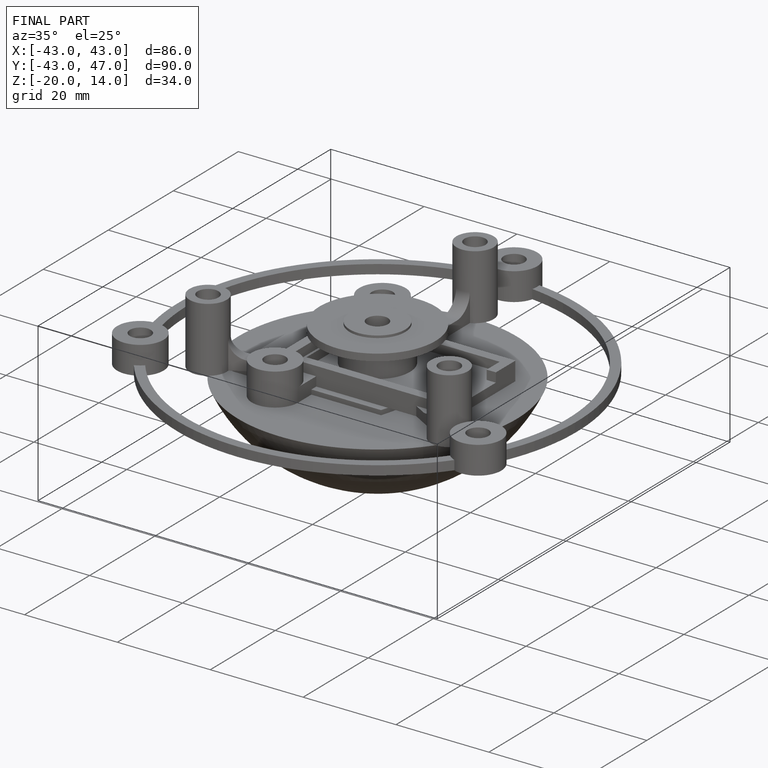
[diagram: finished part — iso view with bounding-box wireframe]
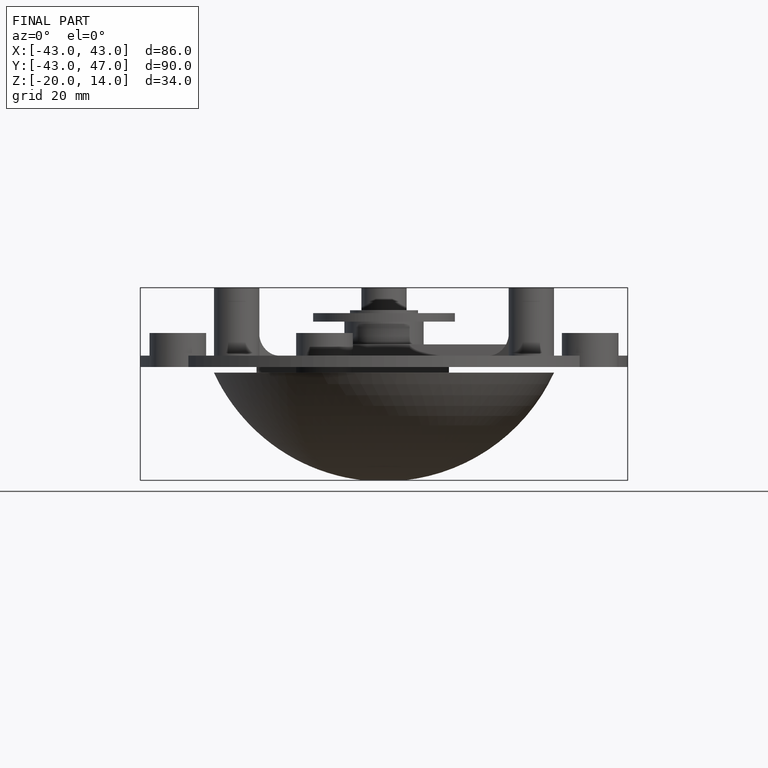
[diagram: finished part — front view with bounding-box wireframe]
